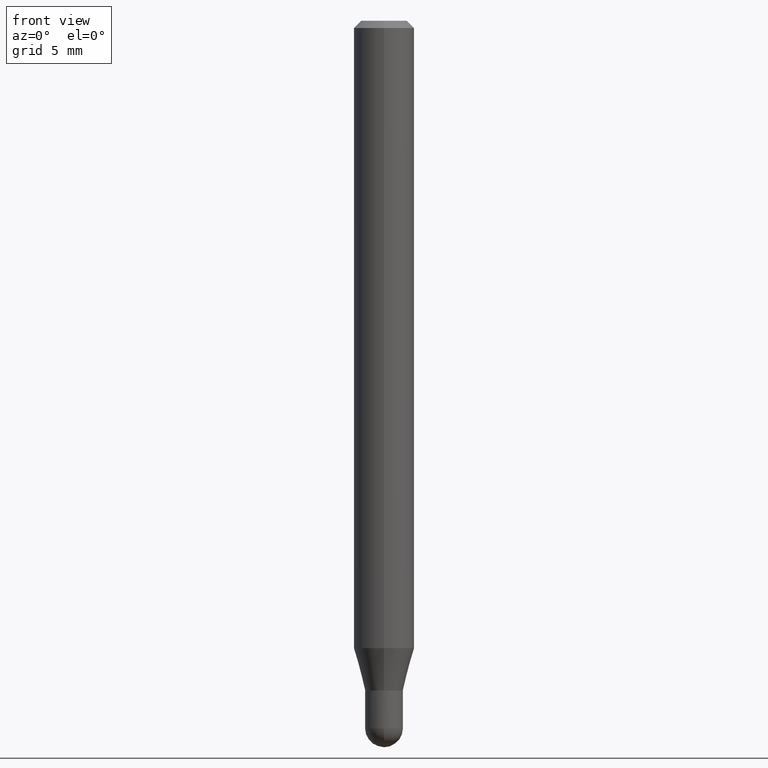
[diagram: clean part render]
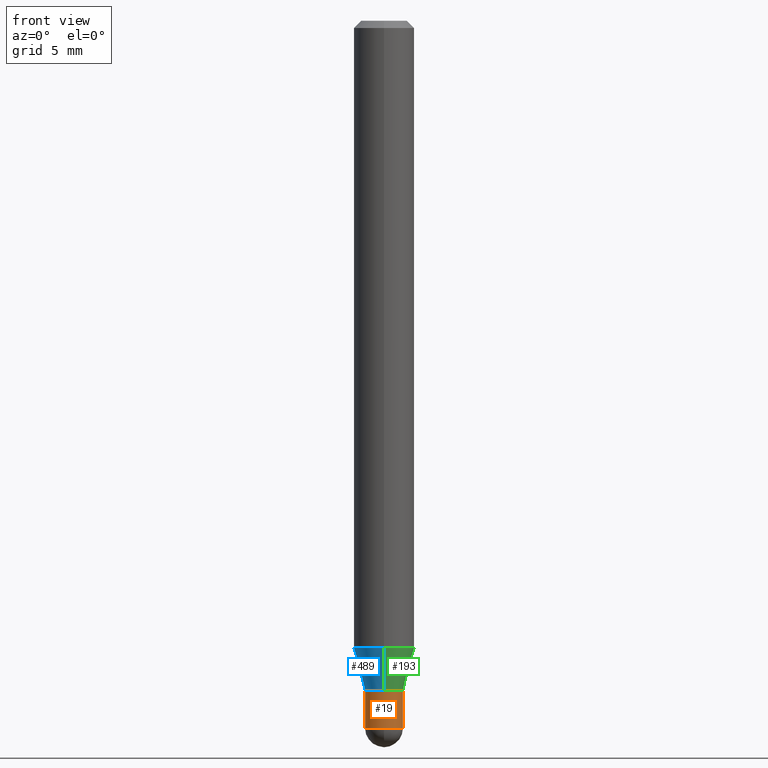
[diagram: same view with three faces highlighted in distinct colors, each labeled with its STEP entity id]
A machine part, front view with three faces highlighted in distinct colors.
Their STEP definitions:

[orange] entity #19 — the highlighted cylindrical surface (edge-blend (fillet) strip) has radius 0.9906 mm, axis along (-0, 0, 1).
#18 = VERTEX_POINT ( 'NONE', #478 ) ;
#19 = ADVANCED_FACE ( 'NONE', ( #214 ), #370, .T. ) ;
#20 = CARTESIAN_POINT ( 'NONE',  ( 0.000000000000000000, 0.000000000000000000, 0.000000000000000000 ) ) ;
#39 = CIRCLE ( 'NONE', #44, 0.03899999999999999994 ) ;
#44 = AXIS2_PLACEMENT_3D ( 'NONE', #159, #307, #315 ) ;
#45 = VERTEX_POINT ( 'NONE', #88 ) ;
#67 = AXIS2_PLACEMENT_3D ( 'NONE', #427, #84, #235 ) ;
#82 = CIRCLE ( 'NONE', #269, 0.03899999999999999994 ) ;
#84 = DIRECTION ( 'NONE',  ( -2.445468806185136597E-29, 3.491481338843145583E-15, 1.000000000000000000 ) ) ;
#86 = EDGE_CURVE ( 'NONE', #109, #18, #82, .T. ) ;
#87 = CIRCLE ( 'NONE', #67, 0.03899999999999999994 ) ;
#88 = CARTESIAN_POINT ( 'NONE',  ( 0.03899999999999999994, -5.101054236049835376E-15, -1.383000000000000229 ) ) ;
#94 = ORIENTED_EDGE ( 'NONE', *, *, #469, .T. ) ;
#109 = VERTEX_POINT ( 'NONE', #185 ) ;
#110 = LINE ( 'NONE', #411, #209 ) ;
#126 = DIRECTION ( 'NONE',  ( -2.445468806185136877E-29, 3.491481338843145188E-15, 1.000000000000000000 ) ) ;
#131 = DIRECTION ( 'NONE',  ( 1.000000000000000000, -6.982962677686265922E-15, 4.876176775795935793E-29 ) ) ;
#157 = EDGE_CURVE ( 'NONE', #166, #423, #110, .T. ) ;
#159 = CARTESIAN_POINT ( 'NONE',  ( 3.382083358954044842E-29, -4.828718691620071353E-15, -1.383000000000000229 ) ) ;
#166 = VERTEX_POINT ( 'NONE', #297 ) ;
#173 = ORIENTED_EDGE ( 'NONE', *, *, #331, .T. ) ;
#185 = CARTESIAN_POINT ( 'NONE',  ( -2.723355444297292639E-16, -0.03900000000000519024, -1.461000000000000076 ) ) ;
#200 = VECTOR ( 'NONE', #126, 39.37007874015748143 ) ;
#205 = DIRECTION ( 'NONE',  ( 1.000000000000000000, -6.982962677686258033E-15, 0.000000000000000000 ) ) ;
#209 = VECTOR ( 'NONE', #381, 39.37007874015748143 ) ;
#214 = FACE_OUTER_BOUND ( 'NONE', #295, .T. ) ;
#235 = DIRECTION ( 'NONE',  ( 1.000000000000000000, -6.982962677686258033E-15, 0.000000000000000000 ) ) ;
#244 = ORIENTED_EDGE ( 'NONE', *, *, #86, .T. ) ;
#250 = DIRECTION ( 'NONE',  ( -2.445468806185136597E-29, 3.491481338843145583E-15, 1.000000000000000000 ) ) ;
#253 = CARTESIAN_POINT ( 'NONE',  ( -0.03899999999999999994, -4.687774796888514046E-15, -1.383000000000000229 ) ) ;
#259 = EDGE_CURVE ( 'NONE', #423, #45, #39, .T. ) ;
#269 = AXIS2_PLACEMENT_3D ( 'NONE', #285, #250, #205 ) ;
#285 = CARTESIAN_POINT ( 'NONE',  ( 3.572829925836484317E-29, -5.101054236049835376E-15, -1.461000000000000076 ) ) ;
#288 = LINE ( 'NONE', #322, #200 ) ;
#295 = EDGE_LOOP ( 'NONE', ( #308, #173, #244, #94, #382 ) ) ;
#297 = CARTESIAN_POINT ( 'NONE',  ( -0.03899999999999999994, -4.687774796888514046E-15, -1.461000000000000076 ) ) ;
#307 = DIRECTION ( 'NONE',  ( -2.445468806185136597E-29, 3.491481338843145583E-15, 1.000000000000000000 ) ) ;
#308 = ORIENTED_EDGE ( 'NONE', *, *, #157, .F. ) ;
#315 = DIRECTION ( 'NONE',  ( 1.000000000000000000, -6.982962677686258033E-15, 0.000000000000000000 ) ) ;
#320 = DIRECTION ( 'NONE',  ( -2.445468806185136597E-29, 3.491481338843145583E-15, 1.000000000000000000 ) ) ;
#322 = CARTESIAN_POINT ( 'NONE',  ( 0.03899999999999999994, -2.723355444297643682E-16, 1.901708942560414931E-30 ) ) ;
#331 = EDGE_CURVE ( 'NONE', #166, #109, #87, .T. ) ;
#370 = CYLINDRICAL_SURFACE ( 'NONE', #383, 0.03899999999999999994 ) ;
#381 = DIRECTION ( 'NONE',  ( -2.445468806185136877E-29, 3.491481338843145188E-15, 1.000000000000000000 ) ) ;
#382 = ORIENTED_EDGE ( 'NONE', *, *, #259, .F. ) ;
#383 = AXIS2_PLACEMENT_3D ( 'NONE', #20, #320, #131 ) ;
#411 = CARTESIAN_POINT ( 'NONE',  ( -0.03899999999999999994, 2.771116669464390721E-16, -1.918384685199413078E-30 ) ) ;
#423 = VERTEX_POINT ( 'NONE', #253 ) ;
#427 = CARTESIAN_POINT ( 'NONE',  ( 3.572829925836484317E-29, -5.101054236049835376E-15, -1.461000000000000076 ) ) ;
#469 = EDGE_CURVE ( 'NONE', #18, #45, #288, .T. ) ;
#478 = CARTESIAN_POINT ( 'NONE',  ( 0.03899999999999999994, -5.237222008264717388E-15, -1.461000000000000076 ) ) ;

[blue] entity #489 — the highlighted conical surface has half-angle 15 deg.
#26 = AXIS2_PLACEMENT_3D ( 'NONE', #376, #341, #497 ) ;
#72 = ORIENTED_EDGE ( 'NONE', *, *, #272, .F. ) ;
#92 = CARTESIAN_POINT ( 'NONE',  ( 3.382115306094213590E-29, -4.828672941497029122E-15, -1.383000000000000007 ) ) ;
#100 = CARTESIAN_POINT ( 'NONE',  ( -2.723355444297300034E-16, -0.03900000000000475309, -1.383000000000000007 ) ) ;
#105 = CIRCLE ( 'NONE', #26, 0.06250000000000000000 ) ;
#124 = CARTESIAN_POINT ( 'NONE',  ( -4.364351673553602629E-16, -0.06250000000000455191, -1.295296806022133707 ) ) ;
#147 = DIRECTION ( 'NONE',  ( -6.982962677686265922E-15, -1.000000000000000000, 0.000000000000000000 ) ) ;
#148 = VERTEX_POINT ( 'NONE', #344 ) ;
#153 = CARTESIAN_POINT ( 'NONE',  ( 2.771116669464723029E-16, 0.03899999999999508721, -1.383000000000000007 ) ) ;
#154 = AXIS2_PLACEMENT_3D ( 'NONE', #92, #406, #468 ) ;
#156 = VERTEX_POINT ( 'NONE', #462 ) ;
#167 = AXIS2_PLACEMENT_3D ( 'NONE', #300, #417, #147 ) ;
#194 = VECTOR ( 'NONE', #500, 39.37007874015748854 ) ;
#198 = DIRECTION ( 'NONE',  ( 1.839019923739651986E-15, 0.2588190451025322303, 0.9659258262890650926 ) ) ;
#199 = EDGE_CURVE ( 'NONE', #286, #430, #422, .T. ) ;
#223 = VECTOR ( 'NONE', #198, 39.37007874015748143 ) ;
#234 = EDGE_CURVE ( 'NONE', #148, #430, #105, .T. ) ;
#237 = EDGE_CURVE ( 'NONE', #156, #286, #392, .T. ) ;
#272 = EDGE_CURVE ( 'NONE', #156, #148, #349, .T. ) ;
#286 = VERTEX_POINT ( 'NONE', #464 ) ;
#300 = CARTESIAN_POINT ( 'NONE',  ( 3.382115306094213590E-29, -4.828672941497029122E-15, -1.383000000000000007 ) ) ;
#341 = DIRECTION ( 'NONE',  ( -2.445491906069568494E-29, 3.491448258493875090E-15, 1.000000000000000000 ) ) ;
#344 = CARTESIAN_POINT ( 'NONE',  ( 4.440892098500939734E-16, 0.06249999999999544115, -1.295296806022134373 ) ) ;
#349 = LINE ( 'NONE', #153, #223 ) ;
#351 = CONICAL_SURFACE ( 'NONE', #154, 0.03899999999999992362, 0.2617993877991577900 ) ;
#355 = ORIENTED_EDGE ( 'NONE', *, *, #237, .T. ) ;
#376 = CARTESIAN_POINT ( 'NONE',  ( 3.167637855084892691E-29, -4.522461777618659475E-15, -1.295296806022133929 ) ) ;
#378 = ORIENTED_EDGE ( 'NONE', *, *, #199, .T. ) ;
#392 = CIRCLE ( 'NONE', #167, 0.03899999999999992362 ) ;
#406 = DIRECTION ( 'NONE',  ( -2.445491906069568494E-29, 3.491448258493875090E-15, 1.000000000000000000 ) ) ;
#417 = DIRECTION ( 'NONE',  ( -2.445491906069568494E-29, 3.491448258493875090E-15, 1.000000000000000000 ) ) ;
#422 = LINE ( 'NONE', #100, #194 ) ;
#430 = VERTEX_POINT ( 'NONE', #124 ) ;
#445 = ORIENTED_EDGE ( 'NONE', *, *, #234, .F. ) ;
#462 = CARTESIAN_POINT ( 'NONE',  ( 3.606004383982834093E-16, 0.03899999999999508721, -1.383000000000000007 ) ) ;
#464 = CARTESIAN_POINT ( 'NONE',  ( -2.723355444297300034E-16, -0.03900000000000475309, -1.383000000000000007 ) ) ;
#468 = DIRECTION ( 'NONE',  ( -6.982962677686265922E-15, -1.000000000000000000, 0.000000000000000000 ) ) ;
#481 = FACE_OUTER_BOUND ( 'NONE', #498, .T. ) ;
#489 = ADVANCED_FACE ( 'NONE', ( #481 ), #351, .T. ) ;
#497 = DIRECTION ( 'NONE',  ( -6.982962677686265922E-15, -1.000000000000000000, 4.370956789862821150E-15 ) ) ;
#498 = EDGE_LOOP ( 'NONE', ( #72, #355, #378, #445 ) ) ;
#500 = DIRECTION ( 'NONE',  ( -1.807323732225381021E-15, -0.2588190451025254579, 0.9659258262890669799 ) ) ;

[green] entity #193 — the highlighted conical surface has half-angle 15 deg.
#5 = CIRCLE ( 'NONE', #448, 0.03899999999999992362 ) ;
#15 = AXIS2_PLACEMENT_3D ( 'NONE', #217, #24, #177 ) ;
#24 = DIRECTION ( 'NONE',  ( -2.445491906069568494E-29, 3.491448258493875090E-15, 1.000000000000000000 ) ) ;
#65 = ORIENTED_EDGE ( 'NONE', *, *, #272, .T. ) ;
#85 = DIRECTION ( 'NONE',  ( -2.445491906069568494E-29, 3.491448258493875090E-15, 1.000000000000000000 ) ) ;
#100 = CARTESIAN_POINT ( 'NONE',  ( -2.723355444297300034E-16, -0.03900000000000475309, -1.383000000000000007 ) ) ;
#117 = DIRECTION ( 'NONE',  ( -6.982962677686265922E-15, -1.000000000000000000, 0.000000000000000000 ) ) ;
#124 = CARTESIAN_POINT ( 'NONE',  ( -4.364351673553602629E-16, -0.06250000000000455191, -1.295296806022133707 ) ) ;
#148 = VERTEX_POINT ( 'NONE', #344 ) ;
#153 = CARTESIAN_POINT ( 'NONE',  ( 2.771116669464723029E-16, 0.03899999999999508721, -1.383000000000000007 ) ) ;
#156 = VERTEX_POINT ( 'NONE', #462 ) ;
#177 = DIRECTION ( 'NONE',  ( -6.982962677686265922E-15, -1.000000000000000000, 0.000000000000000000 ) ) ;
#182 = CARTESIAN_POINT ( 'NONE',  ( 3.167637855084892691E-29, -4.522461777618659475E-15, -1.295296806022133929 ) ) ;
#188 = DIRECTION ( 'NONE',  ( -6.982962677686265922E-15, -1.000000000000000000, 4.370956789862821150E-15 ) ) ;
#192 = CARTESIAN_POINT ( 'NONE',  ( 3.382115306094213590E-29, -4.828672941497029122E-15, -1.383000000000000007 ) ) ;
#193 = ADVANCED_FACE ( 'NONE', ( #342 ), #466, .T. ) ;
#194 = VECTOR ( 'NONE', #500, 39.37007874015748854 ) ;
#198 = DIRECTION ( 'NONE',  ( 1.839019923739651986E-15, 0.2588190451025322303, 0.9659258262890650926 ) ) ;
#199 = EDGE_CURVE ( 'NONE', #286, #430, #422, .T. ) ;
#215 = ORIENTED_EDGE ( 'NONE', *, *, #199, .F. ) ;
#217 = CARTESIAN_POINT ( 'NONE',  ( 3.382115306094213590E-29, -4.828672941497029122E-15, -1.383000000000000007 ) ) ;
#218 = EDGE_LOOP ( 'NONE', ( #490, #65, #340, #215 ) ) ;
#223 = VECTOR ( 'NONE', #198, 39.37007874015748143 ) ;
#227 = EDGE_CURVE ( 'NONE', #430, #148, #368, .T. ) ;
#272 = EDGE_CURVE ( 'NONE', #156, #148, #349, .T. ) ;
#286 = VERTEX_POINT ( 'NONE', #464 ) ;
#310 = AXIS2_PLACEMENT_3D ( 'NONE', #182, #385, #188 ) ;
#340 = ORIENTED_EDGE ( 'NONE', *, *, #227, .F. ) ;
#342 = FACE_OUTER_BOUND ( 'NONE', #218, .T. ) ;
#344 = CARTESIAN_POINT ( 'NONE',  ( 4.440892098500939734E-16, 0.06249999999999544115, -1.295296806022134373 ) ) ;
#349 = LINE ( 'NONE', #153, #223 ) ;
#368 = CIRCLE ( 'NONE', #310, 0.06250000000000000000 ) ;
#377 = EDGE_CURVE ( 'NONE', #286, #156, #5, .T. ) ;
#385 = DIRECTION ( 'NONE',  ( -2.445491906069568494E-29, 3.491448258493875090E-15, 1.000000000000000000 ) ) ;
#422 = LINE ( 'NONE', #100, #194 ) ;
#430 = VERTEX_POINT ( 'NONE', #124 ) ;
#448 = AXIS2_PLACEMENT_3D ( 'NONE', #192, #85, #117 ) ;
#462 = CARTESIAN_POINT ( 'NONE',  ( 3.606004383982834093E-16, 0.03899999999999508721, -1.383000000000000007 ) ) ;
#464 = CARTESIAN_POINT ( 'NONE',  ( -2.723355444297300034E-16, -0.03900000000000475309, -1.383000000000000007 ) ) ;
#466 = CONICAL_SURFACE ( 'NONE', #15, 0.03899999999999992362, 0.2617993877991577900 ) ;
#490 = ORIENTED_EDGE ( 'NONE', *, *, #377, .T. ) ;
#500 = DIRECTION ( 'NONE',  ( -1.807323732225381021E-15, -0.2588190451025254579, 0.9659258262890669799 ) ) ;